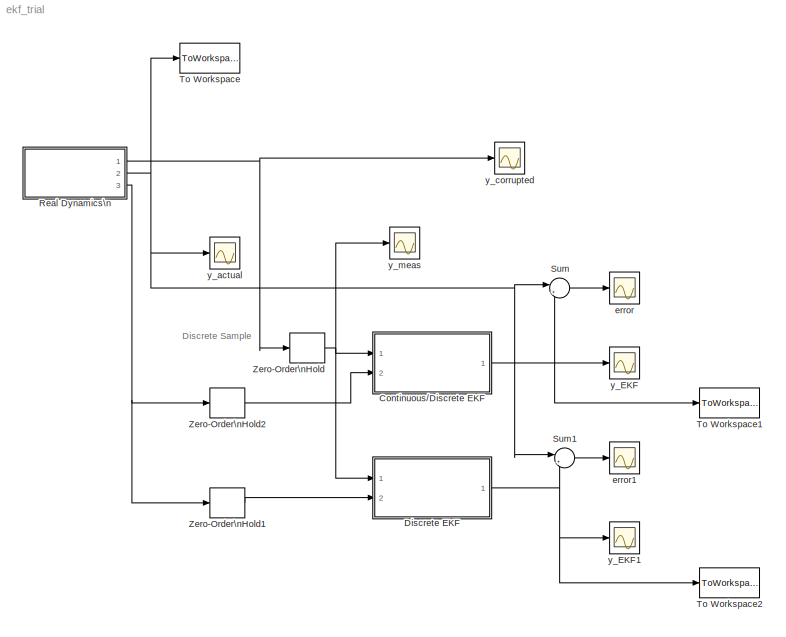
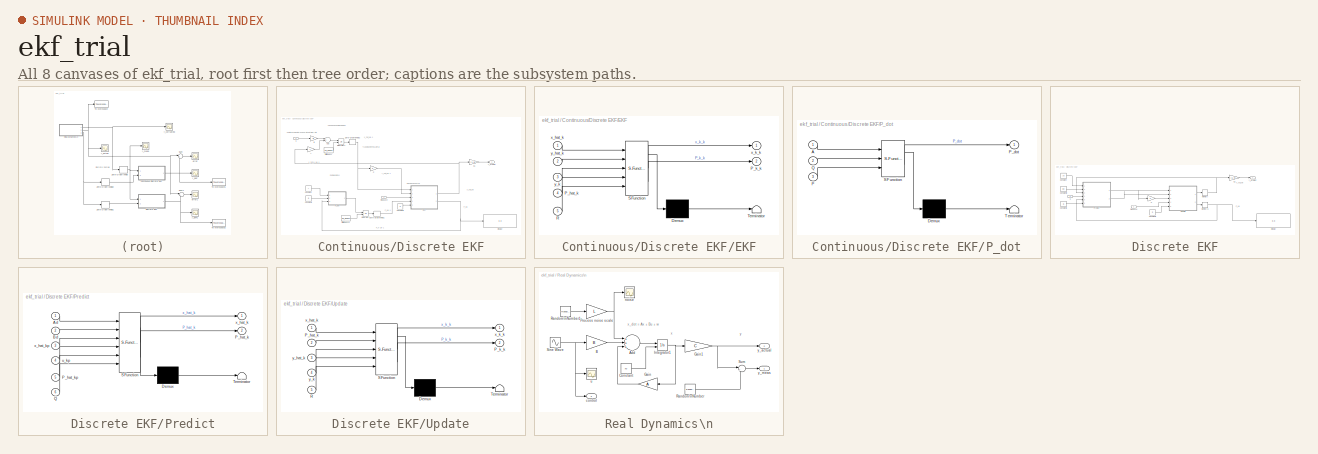
[diagram: thumbnail index - all 8 canvases of the model, root first then tree order]
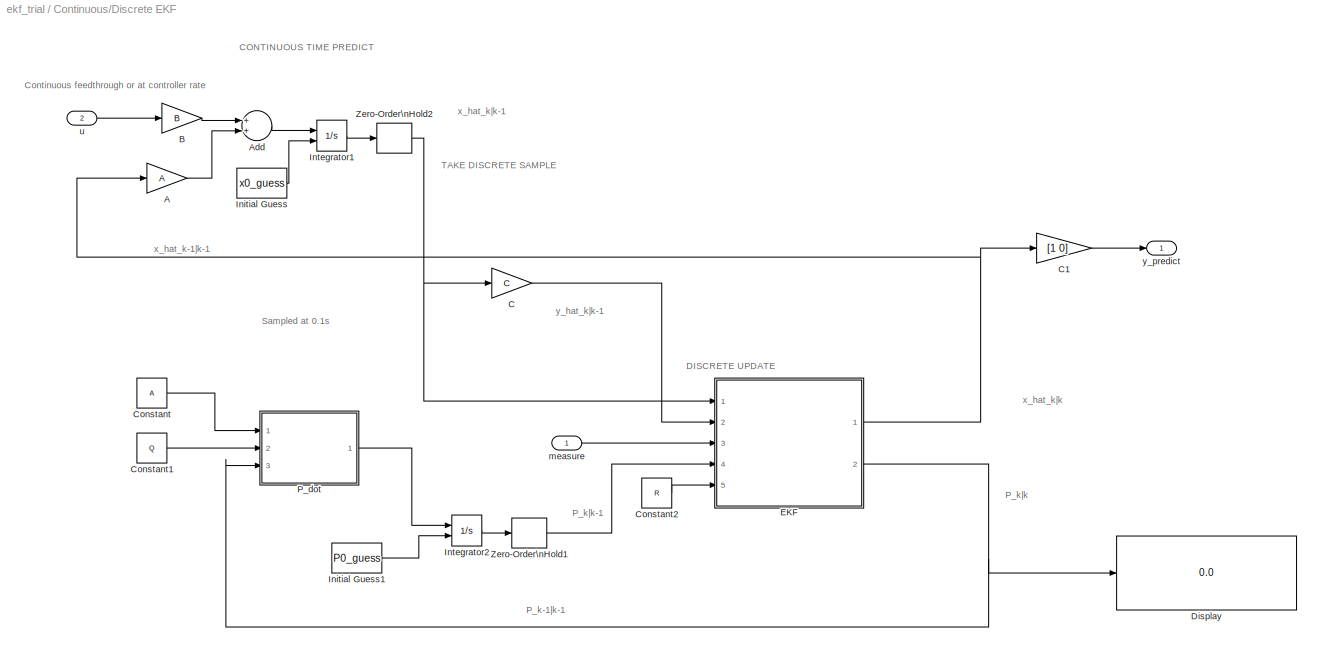
MODEL ekf_trial
KIND model
BLOCK [SubSystem] Continuous//Discrete EKF
  FunctionWithSeparateData = off
  MaskHideContents = off
  MinAlgLoopOccurrences = off
  Opaque = off
  Ports = [2, 1]
  PropExecContextOutsideSubsystem = off
  RTWSystemCode = Auto
  RequestExecContextInheritance = off
  SID = 8
BLOCK [Gain] Continuous//Discrete EKF/A
  Gain = A
  Multiplication = Matrix(K*u)
  OutDataTypeStr = Inherit: Inherit via internal rule
  ParamDataTypeStr = Inherit: Inherit via internal rule
  SID = 15
  SaturateOnIntegerOverflow = off
BLOCK [Sum] Continuous//Discrete EKF/Add
  InputSameDT = off
  OutDataTypeStr = Inherit: Inherit via internal rule
  Ports = [2, 1]
  SID = 28
  SaturateOnIntegerOverflow = off
BLOCK [Gain] Continuous//Discrete EKF/B
  Gain = B
  Multiplication = Matrix(K*u)
  OutDataTypeStr = Inherit: Inherit via internal rule
  ParamDataTypeStr = Inherit: Inherit via internal rule
  SID = 16
  SaturateOnIntegerOverflow = off
BLOCK [Gain] Continuous//Discrete EKF/C
  Gain = C
  Multiplication = Matrix(K*u)
  OutDataTypeStr = Inherit: Inherit via internal rule
  ParamDataTypeStr = Inherit: Inherit via internal rule
  SID = 18
  SaturateOnIntegerOverflow = off
BLOCK [Gain] Continuous//Discrete EKF/C1
  Gain = [1 0]
  Multiplication = Matrix(K*u)
  OutDataTypeStr = Inherit: Inherit via internal rule
  ParamDataTypeStr = Inherit: Inherit via internal rule
  SID = 26
  SaturateOnIntegerOverflow = off
BLOCK [Constant] Continuous//Discrete EKF/Constant
  SID = 24
  Value = A
BLOCK [Constant] Continuous//Discrete EKF/Constant1
  SID = 65
  Value = Q
BLOCK [Constant] Continuous//Discrete EKF/Constant2
  SID = 67
  Value = R
BLOCK [Display] Continuous//Discrete EKF/Display
  Decimation = 1
  Lockdown = off
  Ports = [1]
  SID = 29
BLOCK [SubSystem] Continuous//Discrete EKF/EKF
  ErrorFcn = Stateflow.Translate.translate
  FunctionWithSeparateData = off
  MaskHideContents = off
  MinAlgLoopOccurrences = off
  Opaque = off
  PermitHierarchicalResolution = ExplicitOnly
  Ports = [5, 2]
  PropExecContextOutsideSubsystem = off
  RTWSystemCode = Auto
  RequestExecContextInheritance = off
  SFBlockType = MATLAB Function
  SID = 20
  TreatAsAtomicUnit = on
BLOCK [Demux] Continuous//Discrete EKF/EKF/ Demux 
  Outputs = 1
  Ports = [1, 1]
  SID = 20::29
BLOCK [S-Function] Continuous//Discrete EKF/EKF/ SFunction 
  EnableBusSupport = on
  FunctionName = sf_sfun
  PortCounts = [5 3]
  Ports = [5, 3]
  SID = 20::28
  Tag = Stateflow S-Function ekf_trial 2
BLOCK [Terminator] Continuous//Discrete EKF/EKF/ Terminator 
  SID = 20::30
BLOCK [Inport] Continuous//Discrete EKF/EKF/P_hat_k
  IconDisplay = Port number
  Port = 4
  SID = 20::19
BLOCK [Outport] Continuous//Discrete EKF/EKF/P_k_k
  IconDisplay = Port number
  Port = 2
  SID = 20::22
BLOCK [Inport] Continuous//Discrete EKF/EKF/R
  IconDisplay = Port number
  Port = 5
  SID = 20::27
BLOCK [Inport] Continuous//Discrete EKF/EKF/x_hat_k
  IconDisplay = Port number
  SID = 20::1
BLOCK [Outport] Continuous//Discrete EKF/EKF/x_k_k
  IconDisplay = Port number
  SID = 20::5
BLOCK [Inport] Continuous//Discrete EKF/EKF/y_hat_k
  IconDisplay = Port number
  Port = 2
  SID = 20::21
BLOCK [Inport] Continuous//Discrete EKF/EKF/y_k
  IconDisplay = Port number
  Port = 3
  SID = 20::20
BLOCK [Constant] Continuous//Discrete EKF/Initial Guess
  SID = 47
  Value = x0_guess
BLOCK [Constant] Continuous//Discrete EKF/Initial Guess1
  SID = 80
  Value = P0_guess
BLOCK [Integrator] Continuous//Discrete EKF/Integrator1
  InitialCondition = [0;20]
  InitialConditionSource = external
  Ports = [2, 1]
  SID = 12
BLOCK [Integrator] Continuous//Discrete EKF/Integrator2
  InitialCondition = [0;20]
  InitialConditionSource = external
  Ports = [2, 1]
  SID = 81
BLOCK [SubSystem] Continuous//Discrete EKF/P_dot
  ErrorFcn = Stateflow.Translate.translate
  FunctionWithSeparateData = off
  MaskHideContents = off
  MinAlgLoopOccurrences = off
  Opaque = off
  PermitHierarchicalResolution = ExplicitOnly
  Ports = [3, 1]
  PropExecContextOutsideSubsystem = off
  RTWSystemCode = Auto
  RequestExecContextInheritance = off
  SFBlockType = MATLAB Function
  SID = 23
  TreatAsAtomicUnit = on
BLOCK [Demux] Continuous//Discrete EKF/P_dot/ Demux 
  Outputs = 1
  Ports = [1, 1]
  SID = 23::26
BLOCK [S-Function] Continuous//Discrete EKF/P_dot/ SFunction 
  EnableBusSupport = on
  FunctionName = sf_sfun
  PortCounts = [3 2]
  Ports = [3, 2]
  SID = 23::25
  Tag = Stateflow S-Function ekf_trial 1
BLOCK [Terminator] Continuous//Discrete EKF/P_dot/ Terminator 
  SID = 23::27
BLOCK [Inport] Continuous//Discrete EKF/P_dot/A
  IconDisplay = Port number
  SID = 23::1
BLOCK [Inport] Continuous//Discrete EKF/P_dot/P
  IconDisplay = Port number
  Port = 3
  SID = 23::18
BLOCK [Outport] Continuous//Discrete EKF/P_dot/P_dot
  IconDisplay = Port number
  SID = 23::5
BLOCK [Inport] Continuous//Discrete EKF/P_dot/Q
  IconDisplay = Port number
  Port = 2
  SID = 23::23
BLOCK [ZeroOrderHold] Continuous//Discrete EKF/Zero-Order\nHold1
  SID = 84
  SampleTime = dt
BLOCK [ZeroOrderHold] Continuous//Discrete EKF/Zero-Order\nHold2
  SID = 78
  SampleTime = dt
BLOCK [Inport] Continuous//Discrete EKF/measure
  IconDisplay = Port number
  SID = 9
BLOCK [Inport] Continuous//Discrete EKF/u
  IconDisplay = Port number
  Port = 2
  SID = 14
BLOCK [Outport] Continuous//Discrete EKF/y_predict
  IconDisplay = Port number
  SID = 10
BLOCK [SubSystem] Discrete EKF
  FunctionWithSeparateData = off
  MaskHideContents = off
  MinAlgLoopOccurrences = off
  Opaque = off
  Ports = [2, 1]
  PropExecContextOutsideSubsystem = off
  RTWSystemCode = Auto
  RequestExecContextInheritance = off
  SID = 89
BLOCK [Gain] Discrete EKF/C
  Gain = C
  Multiplication = Matrix(K*u)
  OutDataTypeStr = Inherit: Inherit via internal rule
  ParamDataTypeStr = Inherit: Inherit via internal rule
  SID = 95
  SaturateOnIntegerOverflow = off
BLOCK [Gain] Discrete EKF/C1
  Gain = [1 0]
  Multiplication = Matrix(K*u)
  OutDataTypeStr = Inherit: Inherit via internal rule
  ParamDataTypeStr = Inherit: Inherit via internal rule
  SID = 96
  SaturateOnIntegerOverflow = off
BLOCK [Constant] Discrete EKF/Constant
  SID = 97
  Value = Ad
BLOCK [Constant] Discrete EKF/Constant1
  SID = 98
  Value = Q
BLOCK [Constant] Discrete EKF/Constant2
  SID = 99
  Value = R
BLOCK [Constant] Discrete EKF/Constant3
  SID = 127
  Value = Bd
BLOCK [Display] Discrete EKF/Display
  Decimation = 1
  Lockdown = off
  Ports = [1]
  SID = 100
BLOCK [Memory] Discrete EKF/Memory
  InheritSampleTime = on
  SID = 130
  X0 = x0_guess
BLOCK [Memory] Discrete EKF/Memory1
  InheritSampleTime = on
  SID = 131
  X0 = P0_guess
BLOCK [SubSystem] Discrete EKF/Predict
  ErrorFcn = Stateflow.Translate.translate
  FunctionWithSeparateData = off
  MaskHideContents = off
  MinAlgLoopOccurrences = off
  Opaque = off
  PermitHierarchicalResolution = ExplicitOnly
  Ports = [6, 2]
  PropExecContextOutsideSubsystem = off
  RTWSystemCode = Auto
  RequestExecContextInheritance = off
  SFBlockType = MATLAB Function
  SID = 132
  TreatAsAtomicUnit = on
BLOCK [Demux] Discrete EKF/Predict/ Demux 
  Outputs = 1
  Ports = [1, 1]
  SID = 132::38
BLOCK [S-Function] Discrete EKF/Predict/ SFunction 
  EnableBusSupport = on
  FunctionName = sf_sfun
  PortCounts = [6 3]
  Ports = [6, 3]
  SID = 132::37
  Tag = Stateflow S-Function ekf_trial 4
BLOCK [Terminator] Discrete EKF/Predict/ Terminator 
  SID = 132::39
BLOCK [Inport] Discrete EKF/Predict/Ad
  IconDisplay = Port number
  SID = 132::21
BLOCK [Inport] Discrete EKF/Predict/Bd
  IconDisplay = Port number
  Port = 2
  SID = 132::20
BLOCK [Outport] Discrete EKF/Predict/P_hat_k
  IconDisplay = Port number
  Port = 2
  SID = 132::36
BLOCK [Inport] Discrete EKF/Predict/P_hat_kp
  IconDisplay = Port number
  Port = 5
  SID = 132::33
BLOCK [Inport] Discrete EKF/Predict/Q
  IconDisplay = Port number
  Port = 6
  SID = 132::34
BLOCK [Inport] Discrete EKF/Predict/u_kp
  IconDisplay = Port number
  Port = 4
  SID = 132::32
BLOCK [Outport] Discrete EKF/Predict/x_hat_k
  IconDisplay = Port number
  SID = 132::35
BLOCK [Inport] Discrete EKF/Predict/x_hat_kp
  IconDisplay = Port number
  Port = 3
  SID = 132::27
BLOCK [SubSystem] Discrete EKF/Update
  ErrorFcn = Stateflow.Translate.translate
  FunctionWithSeparateData = off
  MaskHideContents = off
  MinAlgLoopOccurrences = off
  Opaque = off
  PermitHierarchicalResolution = ExplicitOnly
  Ports = [5, 2]
  PropExecContextOutsideSubsystem = off
  RTWSystemCode = Auto
  RequestExecContextInheritance = off
  SFBlockType = MATLAB Function
  SID = 101
  TreatAsAtomicUnit = on
BLOCK [Demux] Discrete EKF/Update/ Demux 
  Outputs = 1
  Ports = [1, 1]
  SID = 101::33
BLOCK [S-Function] Discrete EKF/Update/ SFunction 
  EnableBusSupport = on
  FunctionName = sf_sfun
  PortCounts = [5 3]
  Ports = [5, 3]
  SID = 101::32
  Tag = Stateflow S-Function ekf_trial 3
BLOCK [Terminator] Discrete EKF/Update/ Terminator 
  SID = 101::34
BLOCK [Inport] Discrete EKF/Update/P_hat_k
  IconDisplay = Port number
  Port = 2
  SID = 101::19
BLOCK [Outport] Discrete EKF/Update/P_k_k
  IconDisplay = Port number
  Port = 2
  SID = 101::22
BLOCK [Inport] Discrete EKF/Update/R
  IconDisplay = Port number
  Port = 5
  SID = 101::27
BLOCK [Inport] Discrete EKF/Update/x_hat_k
  IconDisplay = Port number
  SID = 101::1
BLOCK [Outport] Discrete EKF/Update/x_k_k
  IconDisplay = Port number
  SID = 101::5
BLOCK [Inport] Discrete EKF/Update/y_hat_k
  IconDisplay = Port number
  Port = 3
  SID = 101::21
BLOCK [Inport] Discrete EKF/Update/y_k
  IconDisplay = Port number
  Port = 4
  SID = 101::20
BLOCK [Inport] Discrete EKF/measure
  IconDisplay = Port number
  SID = 90
BLOCK [Inport] Discrete EKF/u
  IconDisplay = Port number
  Port = 2
  SID = 91
BLOCK [Outport] Discrete EKF/y_predict
  IconDisplay = Port number
  SID = 109
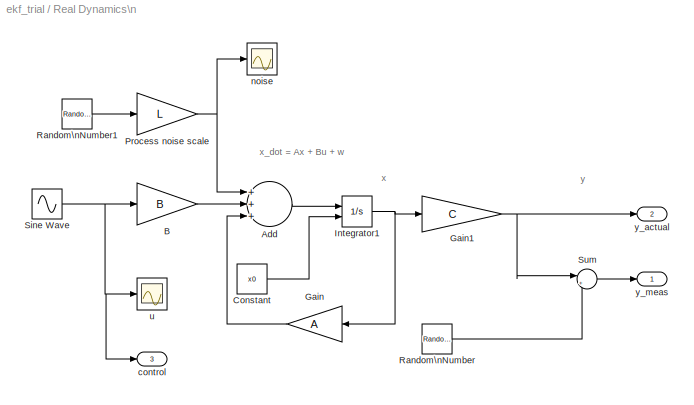
BLOCK [SubSystem] Real Dynamics\n
  FunctionWithSeparateData = off
  MaskHideContents = off
  MinAlgLoopOccurrences = off
  Opaque = off
  Ports = [0, 3]
  PropExecContextOutsideSubsystem = off
  RTWSystemCode = Auto
  RequestExecContextInheritance = off
  SID = 55
BLOCK [Sum] Real Dynamics\n/Add
  InputSameDT = off
  Inputs = +++
  OutDataTypeStr = Inherit: Inherit via internal rule
  Ports = [3, 1]
  SID = 53
  SaturateOnIntegerOverflow = off
BLOCK [Gain] Real Dynamics\n/B
  Gain = B
  Multiplication = Matrix(K*u)
  OutDataTypeStr = Inherit: Inherit via internal rule
  ParamDataTypeStr = Inherit: Inherit via internal rule
  SID = 50
  SaturateOnIntegerOverflow = off
BLOCK [Constant] Real Dynamics\n/Constant
  SID = 52
  Value = x0
BLOCK [Gain] Real Dynamics\n/Gain
  Gain = A
  Multiplication = Matrix(K*u)
  OutDataTypeStr = Inherit: Inherit via internal rule
  ParamDataTypeStr = Inherit: Inherit via internal rule
  SID = 57
  SaturateOnIntegerOverflow = off
BLOCK [Gain] Real Dynamics\n/Gain1
  Gain = C
  Multiplication = Matrix(K*u)
  OutDataTypeStr = Inherit: Inherit via internal rule
  ParamDataTypeStr = Inherit: Inherit via internal rule
  SID = 60
  SaturateOnIntegerOverflow = off
BLOCK [Integrator] Real Dynamics\n/Integrator1
  InitialConditionSource = external
  Ports = [2, 1]
  SID = 2
BLOCK [Gain] Real Dynamics\n/Process noise scale
  Gain = L
  Multiplication = Matrix(K*u)
  OutDataTypeStr = Inherit: Inherit via internal rule
  ParamDataTypeStr = Inherit: Inherit via internal rule
  SID = 88
  SaturateOnIntegerOverflow = off
BLOCK [RandomNumber] Real Dynamics\n/Random\nNumber
  SID = 6
  SampleTime = dt
  Seed = 14127
  Variance = R
BLOCK [RandomNumber] Real Dynamics\n/Random\nNumber1
  Mean = [0;0]
  SID = 54
  SampleTime = dt
  Seed = [6478,3164]
BLOCK [Sin] Real Dynamics\n/Sine Wave
  Amplitude = 25
  Frequency = 2*pi*0.5
  Ports = [0, 1]
  SID = 13
  SampleTime = 0
BLOCK [Sum] Real Dynamics\n/Sum
  IconShape = round
  InputSameDT = off
  Inputs = |++
  OutDataTypeStr = Inherit: Inherit via internal rule
  Ports = [2, 1]
  SID = 5
  SaturateOnIntegerOverflow = off
BLOCK [Outport] Real Dynamics\n/control
  IconDisplay = Port number
  Port = 3
  SID = 64
BLOCK [Scope] Real Dynamics\n/noise
  DataFormat = StructureWithTime
  Floating = off
  NumInputPorts = 1
  Ports = [1]
  SID = 87
  SampleTime = 0
  SaveName = ScopeData7
  ShowLegends = off
BLOCK [Scope] Real Dynamics\n/u
  DataFormat = StructureWithTime
  Floating = off
  NumInputPorts = 1
  Ports = [1]
  SID = 30
  SampleTime = 0
  SaveName = ScopeData3
  ShowLegends = off
BLOCK [Outport] Real Dynamics\n/y_actual
  IconDisplay = Port number
  Port = 2
  SID = 62
BLOCK [Outport] Real Dynamics\n/y_meas
  IconDisplay = Port number
  SID = 56
BLOCK [Sum] Sum
  IconShape = round
  InputSameDT = off
  Inputs = |+-
  OutDataTypeStr = Inherit: Inherit via internal rule
  Ports = [2, 1]
  SID = 74
  SaturateOnIntegerOverflow = off
BLOCK [Sum] Sum1
  IconShape = round
  InputSameDT = off
  Inputs = |+-
  OutDataTypeStr = Inherit: Inherit via internal rule
  Ports = [2, 1]
  SID = 123
  SaturateOnIntegerOverflow = off
BLOCK [ToWorkspace] To Workspace
  MaxDataPoints = inf
  Ports = [1]
  SID = 144
  SampleTime = dt
  VariableName = y
BLOCK [ToWorkspace] To Workspace1
  MaxDataPoints = inf
  Ports = [1]
  SID = 145
  SampleTime = dt
  VariableName = y1
BLOCK [ToWorkspace] To Workspace2
  MaxDataPoints = inf
  Ports = [1]
  SID = 146
  SampleTime = dt
  VariableName = y2
BLOCK [ZeroOrderHold] Zero-Order\nHold
  SID = 33
  SampleTime = dt
BLOCK [ZeroOrderHold] Zero-Order\nHold1
  SID = 122
  SampleTime = dt
BLOCK [ZeroOrderHold] Zero-Order\nHold2
  SID = 143
  SampleTime = dt
BLOCK [Scope] error
  DataFormat = StructureWithTime
  Floating = off
  LimitDataPoints = off
  NumInputPorts = 1
  Ports = [1]
  SID = 75
  SampleTime = 0
  SaveName = ScopeData5
  ShowLegends = off
  ZoomMode = yonly
BLOCK [Scope] error1
  DataFormat = StructureWithTime
  Floating = off
  LimitDataPoints = off
  NumInputPorts = 1
  Ports = [1]
  SID = 124
  SampleTime = 0
  SaveName = ScopeData6
  ShowLegends = off
BLOCK [Scope] y_EKF
  DataFormat = StructureWithTime
  Floating = off
  LimitDataPoints = off
  NumInputPorts = 1
  Ports = [1]
  SID = 27
  SampleTime = 0
  SaveName = ScopeData2
  ShowLegends = off
BLOCK [Scope] y_EKF1
  DataFormat = StructureWithTime
  Floating = off
  NumInputPorts = 1
  Ports = [1]
  SID = 125
  SampleTime = 0
  SaveName = ScopeData8
  ShowLegends = off
BLOCK [Scope] y_actual
  DataFormat = StructureWithTime
  Floating = off
  NumInputPorts = 1
  Ports = [1]
  SID = 63
  SampleTime = 0
  ShowLegends = off
BLOCK [Scope] y_corrupted
  DataFormat = StructureWithTime
  Floating = off
  NumInputPorts = 1
  Ports = [1]
  SID = 7
  SampleTime = 0
  SaveName = ScopeData1
  ShowLegends = off
BLOCK [Scope] y_meas
  DataFormat = StructureWithTime
  Floating = off
  NumInputPorts = 1
  Ports = [1]
  SID = 31
  SampleTime = 0
  SaveName = ScopeData4
  ShowLegends = off
ANNOTATION (root): Discrete Sample
ANNOTATION Continuous//Discrete EKF: Continuous feedthrough or at controller rate
ANNOTATION Continuous//Discrete EKF: CONTINUOUS TIME PREDICT
ANNOTATION Continuous//Discrete EKF: DISCRETE UPDATE
ANNOTATION Continuous//Discrete EKF: P_k-1|k-1
ANNOTATION Continuous//Discrete EKF: P_k|k
ANNOTATION Continuous//Discrete EKF: P_k|k-1
ANNOTATION Continuous//Discrete EKF: Sampled at 0.1s
ANNOTATION Continuous//Discrete EKF: TAKE DISCRETE SAMPLE
ANNOTATION Continuous//Discrete EKF: x_hat_k-1|k-1
ANNOTATION Continuous//Discrete EKF: x_hat_k|k
ANNOTATION Continuous//Discrete EKF: x_hat_k|k-1
ANNOTATION Continuous//Discrete EKF: y_hat_k|k-1
ANNOTATION Discrete EKF: P_k|k
ANNOTATION Discrete EKF: x_hat_k|k
ANNOTATION Real Dynamics\n: x
ANNOTATION Real Dynamics\n: x_dot = Ax + Bu + w
ANNOTATION Real Dynamics\n: y
LINE Continuous//Discrete EKF/A:1 -> Continuous//Discrete EKF/Add:2
LINE Continuous//Discrete EKF/Add:1 -> Continuous//Discrete EKF/Integrator1:1
LINE Continuous//Discrete EKF/B:1 -> Continuous//Discrete EKF/Add:1
LINE Continuous//Discrete EKF/C1:1 -> Continuous//Discrete EKF/y_predict:1
LINE Continuous//Discrete EKF/C:1 -> Continuous//Discrete EKF/EKF:2
LINE Continuous//Discrete EKF/Constant1:1 -> Continuous//Discrete EKF/P_dot:2
LINE Continuous//Discrete EKF/Constant2:1 -> Continuous//Discrete EKF/EKF:5
LINE Continuous//Discrete EKF/Constant:1 -> Continuous//Discrete EKF/P_dot:1
LINE Continuous//Discrete EKF/EKF/ Demux :1 -> Continuous//Discrete EKF/EKF/ Terminator :1
LINE Continuous//Discrete EKF/EKF/ SFunction :1 -> Continuous//Discrete EKF/EKF/ Demux :1
LINE Continuous//Discrete EKF/EKF/ SFunction :2 -> Continuous//Discrete EKF/EKF/x_k_k:1
LINE Continuous//Discrete EKF/EKF/ SFunction :3 -> Continuous//Discrete EKF/EKF/P_k_k:1
LINE Continuous//Discrete EKF/EKF/P_hat_k:1 -> Continuous//Discrete EKF/EKF/ SFunction :4
LINE Continuous//Discrete EKF/EKF/R:1 -> Continuous//Discrete EKF/EKF/ SFunction :5
LINE Continuous//Discrete EKF/EKF/x_hat_k:1 -> Continuous//Discrete EKF/EKF/ SFunction :1
LINE Continuous//Discrete EKF/EKF/y_hat_k:1 -> Continuous//Discrete EKF/EKF/ SFunction :2
LINE Continuous//Discrete EKF/EKF/y_k:1 -> Continuous//Discrete EKF/EKF/ SFunction :3
NET Continuous//Discrete EKF/EKF:1 -> Continuous//Discrete EKF/A:1, Continuous//Discrete EKF/C1:1
NET Continuous//Discrete EKF/EKF:2 -> Continuous//Discrete EKF/Display:1, Continuous//Discrete EKF/P_dot:3
LINE Continuous//Discrete EKF/Initial Guess1:1 -> Continuous//Discrete EKF/Integrator2:2
LINE Continuous//Discrete EKF/Initial Guess:1 -> Continuous//Discrete EKF/Integrator1:2
LINE Continuous//Discrete EKF/Integrator1:1 -> Continuous//Discrete EKF/Zero-Order\nHold2:1
LINE Continuous//Discrete EKF/Integrator2:1 -> Continuous//Discrete EKF/Zero-Order\nHold1:1
LINE Continuous//Discrete EKF/P_dot/ Demux :1 -> Continuous//Discrete EKF/P_dot/ Terminator :1
LINE Continuous//Discrete EKF/P_dot/ SFunction :1 -> Continuous//Discrete EKF/P_dot/ Demux :1
LINE Continuous//Discrete EKF/P_dot/ SFunction :2 -> Continuous//Discrete EKF/P_dot/P_dot:1
LINE Continuous//Discrete EKF/P_dot/A:1 -> Continuous//Discrete EKF/P_dot/ SFunction :1
LINE Continuous//Discrete EKF/P_dot/P:1 -> Continuous//Discrete EKF/P_dot/ SFunction :3
LINE Continuous//Discrete EKF/P_dot/Q:1 -> Continuous//Discrete EKF/P_dot/ SFunction :2
LINE Continuous//Discrete EKF/P_dot:1 -> Continuous//Discrete EKF/Integrator2:1
LINE Continuous//Discrete EKF/Zero-Order\nHold1:1 -> Continuous//Discrete EKF/EKF:4
NET Continuous//Discrete EKF/Zero-Order\nHold2:1 -> Continuous//Discrete EKF/C:1, Continuous//Discrete EKF/EKF:1
LINE Continuous//Discrete EKF/measure:1 -> Continuous//Discrete EKF/EKF:3
LINE Continuous//Discrete EKF/u:1 -> Continuous//Discrete EKF/B:1
NET Continuous//Discrete EKF:1 -> Sum:2, To Workspace1:1, y_EKF:1
LINE Discrete EKF/C1:1 -> Discrete EKF/y_predict:1
LINE Discrete EKF/C:1 -> Discrete EKF/Update:3
LINE Discrete EKF/Constant1:1 -> Discrete EKF/Predict:6
LINE Discrete EKF/Constant2:1 -> Discrete EKF/Update:5
LINE Discrete EKF/Constant3:1 -> Discrete EKF/Predict:2
LINE Discrete EKF/Constant:1 -> Discrete EKF/Predict:1
NET Discrete EKF/Memory1:1 -> Discrete EKF/Display:1, Discrete EKF/Predict:5
NET Discrete EKF/Memory:1 -> Discrete EKF/C1:1, Discrete EKF/Predict:3
LINE Discrete EKF/Predict/ Demux :1 -> Discrete EKF/Predict/ Terminator :1
LINE Discrete EKF/Predict/ SFunction :1 -> Discrete EKF/Predict/ Demux :1
LINE Discrete EKF/Predict/ SFunction :2 -> Discrete EKF/Predict/x_hat_k:1
LINE Discrete EKF/Predict/ SFunction :3 -> Discrete EKF/Predict/P_hat_k:1
LINE Discrete EKF/Predict/Ad:1 -> Discrete EKF/Predict/ SFunction :1
LINE Discrete EKF/Predict/Bd:1 -> Discrete EKF/Predict/ SFunction :2
LINE Discrete EKF/Predict/P_hat_kp:1 -> Discrete EKF/Predict/ SFunction :5
LINE Discrete EKF/Predict/Q:1 -> Discrete EKF/Predict/ SFunction :6
LINE Discrete EKF/Predict/u_kp:1 -> Discrete EKF/Predict/ SFunction :4
LINE Discrete EKF/Predict/x_hat_kp:1 -> Discrete EKF/Predict/ SFunction :3
NET Discrete EKF/Predict:1 -> Discrete EKF/C:1, Discrete EKF/Update:1
LINE Discrete EKF/Predict:2 -> Discrete EKF/Update:2
LINE Discrete EKF/Update/ Demux :1 -> Discrete EKF/Update/ Terminator :1
LINE Discrete EKF/Update/ SFunction :1 -> Discrete EKF/Update/ Demux :1
LINE Discrete EKF/Update/ SFunction :2 -> Discrete EKF/Update/x_k_k:1
LINE Discrete EKF/Update/ SFunction :3 -> Discrete EKF/Update/P_k_k:1
LINE Discrete EKF/Update/P_hat_k:1 -> Discrete EKF/Update/ SFunction :2
LINE Discrete EKF/Update/R:1 -> Discrete EKF/Update/ SFunction :5
LINE Discrete EKF/Update/x_hat_k:1 -> Discrete EKF/Update/ SFunction :1
LINE Discrete EKF/Update/y_hat_k:1 -> Discrete EKF/Update/ SFunction :3
LINE Discrete EKF/Update/y_k:1 -> Discrete EKF/Update/ SFunction :4
LINE Discrete EKF/Update:1 -> Discrete EKF/Memory:1
LINE Discrete EKF/Update:2 -> Discrete EKF/Memory1:1
LINE Discrete EKF/measure:1 -> Discrete EKF/Update:4
LINE Discrete EKF/u:1 -> Discrete EKF/Predict:4
NET Discrete EKF:1 -> Sum1:2, To Workspace2:1, y_EKF1:1
LINE Real Dynamics\n/Add:1 -> Real Dynamics\n/Integrator1:1
LINE Real Dynamics\n/B:1 -> Real Dynamics\n/Add:2
LINE Real Dynamics\n/Constant:1 -> Real Dynamics\n/Integrator1:2
NET Real Dynamics\n/Gain1:1 -> Real Dynamics\n/Sum:1, Real Dynamics\n/y_actual:1
LINE Real Dynamics\n/Gain:1 -> Real Dynamics\n/Add:3
NET Real Dynamics\n/Integrator1:1 -> Real Dynamics\n/Gain1:1, Real Dynamics\n/Gain:1
NET Real Dynamics\n/Process noise scale:1 -> Real Dynamics\n/Add:1, Real Dynamics\n/noise:1
LINE Real Dynamics\n/Random\nNumber1:1 -> Real Dynamics\n/Process noise scale:1
LINE Real Dynamics\n/Random\nNumber:1 -> Real Dynamics\n/Sum:2
NET Real Dynamics\n/Sine Wave:1 -> Real Dynamics\n/B:1, Real Dynamics\n/control:1, Real Dynamics\n/u:1
LINE Real Dynamics\n/Sum:1 -> Real Dynamics\n/y_meas:1
NET Real Dynamics\n:1 -> Zero-Order\nHold:1, y_corrupted:1
NET Real Dynamics\n:2 -> Sum1:1, Sum:1, To Workspace:1, y_actual:1
NET Real Dynamics\n:3 -> Zero-Order\nHold1:1, Zero-Order\nHold2:1
LINE Sum1:1 -> error1:1
LINE Sum:1 -> error:1
LINE Zero-Order\nHold1:1 -> Discrete EKF:2
LINE Zero-Order\nHold2:1 -> Continuous//Discrete EKF:2
NET Zero-Order\nHold:1 -> Continuous//Discrete EKF:1, Discrete EKF:1, y_meas:1
note: NET lines group one-source signal fan-out (src -> all destinations, sorted); 1:1 wires keep LINE
CHART Continuous//Discrete EKF/P_dot states=1 transitions=1
  STATE_LABEL 'eML_blk_kernel()'
CHART Continuous//Discrete EKF/EKF states=1 transitions=1
  STATE_LABEL 'eML_blk_kernel()'
CHART Discrete EKF/Update states=1 transitions=1
  STATE_LABEL 'eML_blk_kernel()'
CHART Discrete EKF/Predict states=1 transitions=1
  STATE_LABEL 'eML_blk_kernel()'
